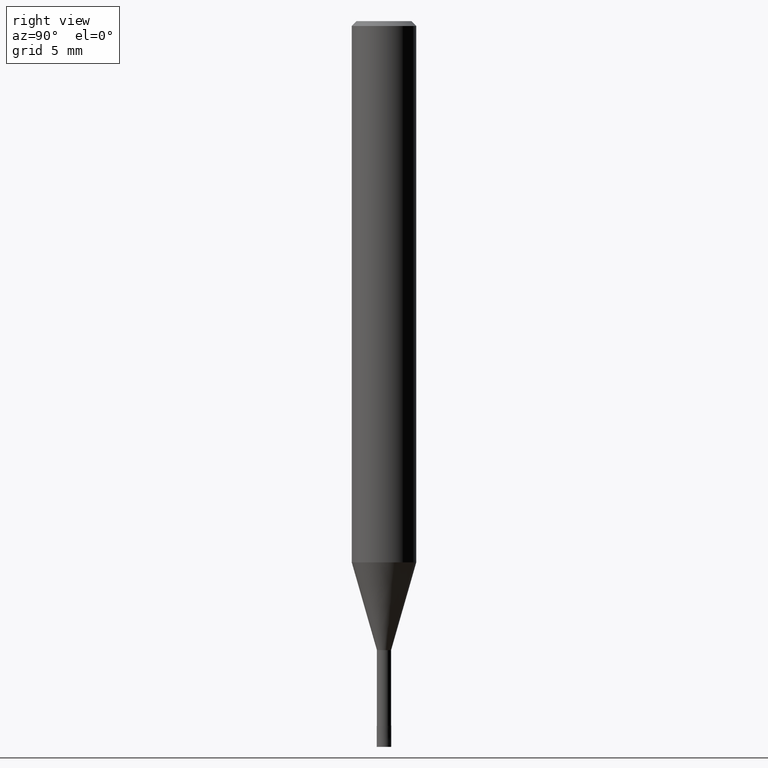
[diagram: clean part render]
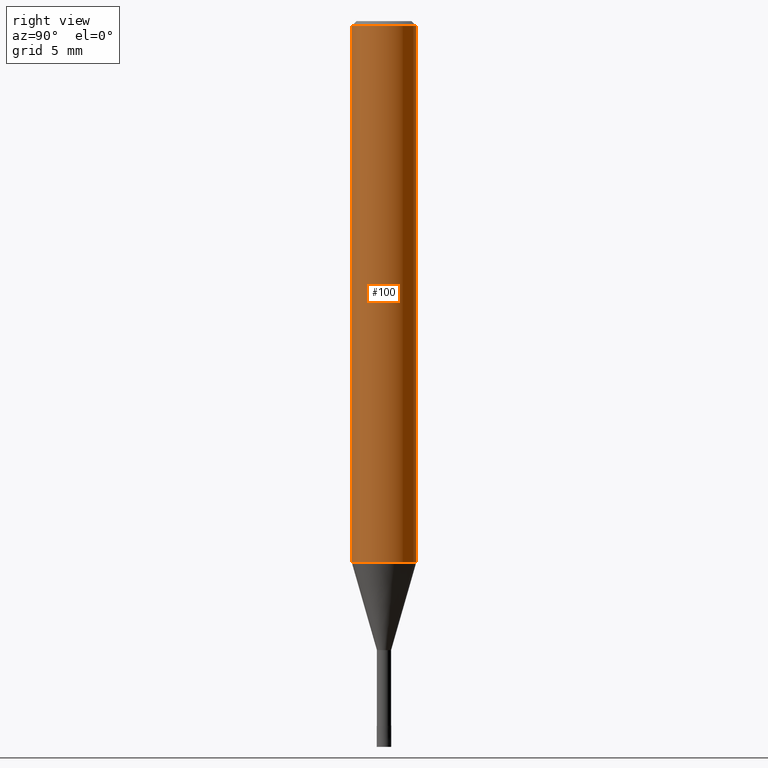
[diagram: same view with one face highlighted and labeled with its STEP entity id]
A machine part, right view. The second image highlights one B-rep face of the part: STEP entity #100.
In plain terms, the highlighted cylindrical surface (edge-blend (fillet) strip) has radius 2 mm, axis along (-0, -0, 1).
Its self-contained STEP definition (entity closure, byte-faithful):
#94=EDGE_CURVE('',#184,#206,#231,.T.);
#100=ADVANCED_FACE('',(#237),#238,.T.);
#136=VERTEX_POINT('',#283);
#142=EDGE_CURVE('',#184,#182,#289,.T.);
#182=VERTEX_POINT('',#335);
#184=VERTEX_POINT('',#337);
#198=EDGE_CURVE('',#206,#136,#351,.T.);
#202=EDGE_CURVE('',#136,#182,#355,.T.);
#206=VERTEX_POINT('',#359);
#231=LINE('',#378,#379);
#237=FACE_OUTER_BOUND('',#387,.T.);
#238=CYLINDRICAL_SURFACE('',#388,2.0);
#283=CARTESIAN_POINT('',(2.44921270764475E-016,-2.0,-33.56));
#289=CIRCLE('',#451,2.0);
#335=CARTESIAN_POINT('',(2.44921270764475E-016,-2.0,-0.299999999999997));
#337=CARTESIAN_POINT('',(0.0,2.0,-0.299999999999997));
#351=CIRCLE('',#527,2.0);
#355=LINE('',#531,#532);
#359=CARTESIAN_POINT('',(0.0,2.0,-33.56));
#378=CARTESIAN_POINT('',(-2.44921270764475E-016,2.0,-16.93));
#379=VECTOR('',#545,1.0);
#387=EDGE_LOOP('',(#553,#554,#555,#556));
#388=AXIS2_PLACEMENT_3D('',#557,#558,#559);
#451=AXIS2_PLACEMENT_3D('',#646,#647,#648);
#527=AXIS2_PLACEMENT_3D('',#708,#709,#710);
#531=CARTESIAN_POINT('',(2.44921270764475E-016,-2.0,-16.93));
#532=VECTOR('',#712,1.0);
#545=DIRECTION('',(0.0,0.0,-1.0));
#553=ORIENTED_EDGE('',*,*,#94,.F.);
#554=ORIENTED_EDGE('',*,*,#142,.T.);
#555=ORIENTED_EDGE('',*,*,#202,.F.);
#556=ORIENTED_EDGE('',*,*,#198,.F.);
#557=CARTESIAN_POINT('',(0.0,0.0,-16.93));
#558=DIRECTION('',(-0.0,-0.0,1.0));
#559=DIRECTION('',(0.0,1.0,0.0));
#646=CARTESIAN_POINT('',(0.0,0.0,-0.299999999999997));
#647=DIRECTION('',(0.0,0.0,-1.0));
#648=DIRECTION('',(0.0,1.0,0.0));
#708=CARTESIAN_POINT('',(0.0,0.0,-33.56));
#709=DIRECTION('',(0.0,0.0,-1.0));
#710=DIRECTION('',(0.0,1.0,0.0));
#712=DIRECTION('',(-0.0,-0.0,1.0));